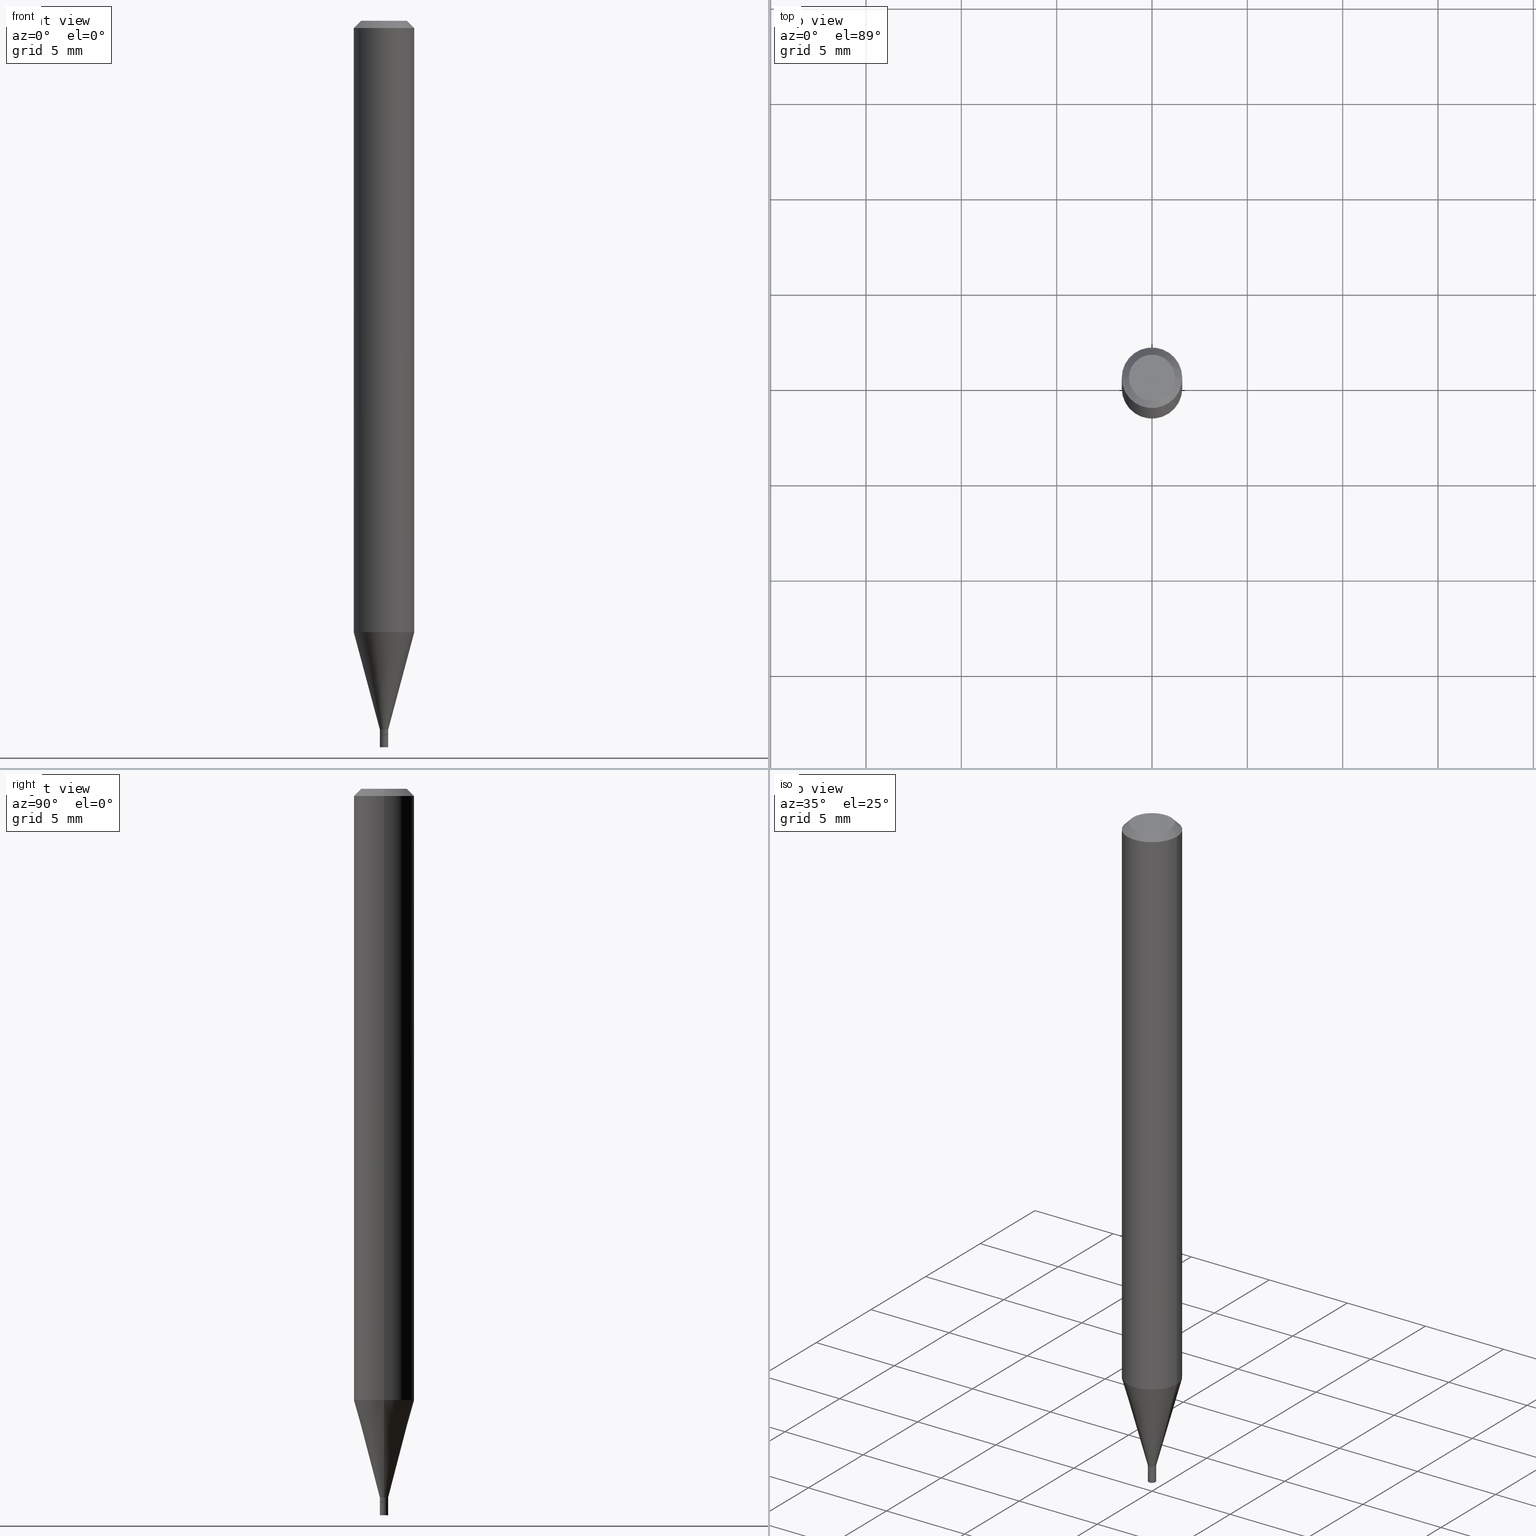
[diagram: canonical four-view strip — front | top / right | iso, engineering-drawing reading convention]
A machine part, canonical four-view strip (front | top / right | iso — engineering-drawing reading convention). The complete STEP part file that produces these views, byte-faithful:
ISO-10303-21;
HEADER;
FILE_DESCRIPTION (( 'STEP AP203' ),
    '1' );
FILE_NAME ('02250.STEP',
    '2024-03-18T19:57:06',
    ( '' ),
    ( '' ),
    'SwSTEP 2.0',
    'SolidWorks 2023',
    '' );
FILE_SCHEMA (( 'CONFIG_CONTROL_DESIGN' ));
ENDSEC;

DATA;
#1 = CC_DESIGN_DATE_AND_TIME_ASSIGNMENT ( #143, #280, ( #182 ) ) ;
#2 = CIRCLE ( 'NONE', #247, 0.008499999999999922548 ) ;
#3 = CC_DESIGN_APPROVAL ( #193, ( #182 ) ) ;
#4 = FACE_OUTER_BOUND ( 'NONE', #9, .T. ) ;
#5 = CARTESIAN_POINT ( 'NONE',  ( 3.604621020316892110E-29, -5.146443493454796836E-15, -1.474000000000000199 ) ) ;
#6 = DIRECTION ( 'NONE',  ( 1.000000000000000000, -6.982962677686266711E-15, 4.876176775795936353E-29 ) ) ;
#7 = CARTESIAN_POINT ( 'NONE',  ( 3.604621020316892110E-29, -5.146443493454796836E-15, -1.474000000000000199 ) ) ;
#8 = CARTESIAN_POINT ( 'NONE',  ( 3.603398285913799309E-29, -5.144697752785376121E-15, -1.473500000000000254 ) ) ;
#9 = EDGE_LOOP ( 'NONE', ( #220, #205, #58, #273 ) ) ;
#10 = ORIENTED_EDGE ( 'NONE', *, *, #334, .F. ) ;
#11 = ADVANCED_FACE ( 'NONE', ( #187 ), #390, .F. ) ;
#12 = DIRECTION ( 'NONE',  ( -2.445468806185136877E-29, 3.491481338843145188E-15, 1.000000000000000000 ) ) ;
#13 = ORIENTED_EDGE ( 'NONE', *, *, #389, .F. ) ;
#14 = CARTESIAN_POINT ( 'NONE',  ( 3.580166332255040005E-29, -5.111528680066365187E-15, -1.463999999999999968 ) ) ;
#15 = CC_DESIGN_PERSON_AND_ORGANIZATION_ASSIGNMENT ( #417, #378, ( #379 ) ) ;
#16 = ORIENTED_EDGE ( 'NONE', *, *, #431, .T. ) ;
#17 = FACE_OUTER_BOUND ( 'NONE', #331, .T. ) ;
#18 = LOCAL_TIME ( 15, 57, 6.000000000000000000, #23 ) ;
#19 = EDGE_LOOP ( 'NONE', ( #53, #228, #416, #164 ) ) ;
#20 = DIRECTION ( 'NONE',  ( 1.000000000000000000, -6.982962677686267499E-15, 5.108144071313017768E-29 ) ) ;
#21 = CARTESIAN_POINT ( 'NONE',  ( 0.06249999999999999306, -4.844323016908731836E-15, -1.262469256391280936 ) ) ;
#22 = CYLINDRICAL_SURFACE ( 'NONE', #131, 0.06250000000000000000 ) ;
#23 = COORDINATED_UNIVERSAL_TIME_OFFSET ( 5, 0, .BEHIND. ) ;
#24 = ORIENTED_EDGE ( 'NONE', *, *, #389, .T. ) ;
#25 = VECTOR ( 'NONE', #288, 39.37007874015748143 ) ;
#26 = APPROVAL_ROLE ( '' ) ;
#27 = EDGE_LOOP ( 'NONE', ( #255, #104, #192, #309 ) ) ;
#28 = LOCAL_TIME ( 15, 57, 6.000000000000000000, #178 ) ;
#29 = DIMENSIONAL_EXPONENTS ( 1.000000000000000000, 0.000000000000000000, 0.000000000000000000, 0.000000000000000000, 0.000000000000000000, 0.000000000000000000, 0.000000000000000000 ) ;
#30 = ADVANCED_FACE ( 'NONE', ( #110 ), #422, .T. ) ;
#31 = APPLICATION_PROTOCOL_DEFINITION ( 'international standard', 'config_control_design', 1994, #221 ) ;
#32 = PERSON_AND_ORGANIZATION ( #254, #248 ) ;
#33 = CARTESIAN_POINT ( 'NONE',  ( 0.008499999999999922548, -5.170883862826697886E-15, -1.463999999999999968 ) ) ;
#34 = AXIS2_PLACEMENT_3D ( 'NONE', #208, #90, #95 ) ;
#35 = EDGE_LOOP ( 'NONE', ( #303, #10 ) ) ;
#36 = CARTESIAN_POINT ( 'NONE',  ( -0.008499999999999922548, -5.051132547526757800E-15, -1.463999999999999968 ) ) ;
#37 = EDGE_CURVE ( 'NONE', #91, #124, #2, .T. ) ;
#38 = FACE_OUTER_BOUND ( 'NONE', #61, .T. ) ;
#39 = CARTESIAN_POINT ( 'NONE',  ( -0.008499999999999922548, 6.039613253960796547E-17, -4.181094826716631533E-31 ) ) ;
#40 = ADVANCED_FACE ( 'NONE', ( #38 ), #311, .T. ) ;
#41 = LINE ( 'NONE', #184, #362 ) ;
#42 = AXIS2_PLACEMENT_3D ( 'NONE', #251, #406, #356 ) ;
#43 = DIRECTION ( 'NONE',  ( 2.438088387897960049E-29, -3.491481338843145188E-15, -1.000000000000000000 ) ) ;
#44 = DIRECTION ( 'NONE',  ( -2.445468806185136877E-29, 3.491481338843145188E-15, 1.000000000000000000 ) ) ;
#45 = CARTESIAN_POINT ( 'NONE',  ( -0.008500000000000000611, 6.039613253960852014E-17, -4.181094826716670069E-31 ) ) ;
#46 = CARTESIAN_POINT ( 'NONE',  ( 0.008500000000000000611, -5.205798676215130324E-15, -1.474000000000000199 ) ) ;
#47 = ORIENTED_EDGE ( 'NONE', *, *, #325, .F. ) ;
#48 = VECTOR ( 'NONE', #227, 39.37007874015747433 ) ;
#49 = ORIENTED_EDGE ( 'NONE', *, *, #297, .T. ) ;
#50 = VERTEX_POINT ( 'NONE', #159 ) ;
#51 = EDGE_CURVE ( 'NONE', #359, #82, #460, .T. ) ;
#52 = CC_DESIGN_PERSON_AND_ORGANIZATION_ASSIGNMENT ( #305, #215, ( #408 ) ) ;
#53 = ORIENTED_EDGE ( 'NONE', *, *, #189, .F. ) ;
#54 = EDGE_LOOP ( 'NONE', ( #13, #130 ) ) ;
#55 = CARTESIAN_POINT ( 'NONE',  ( 0.000000000000000000, 0.000000000000000000, 0.000000000000000000 ) ) ;
#56 = EDGE_CURVE ( 'NONE', #179, #341, #426, .T. ) ;
#57 = DIRECTION ( 'NONE',  ( -2.445468806185136597E-29, 3.491481338843145583E-15, 1.000000000000000000 ) ) ;
#58 = ORIENTED_EDGE ( 'NONE', *, *, #339, .T. ) ;
#59 = DIRECTION ( 'NONE',  ( 1.000000000000000000, -6.982962677686262766E-15, 0.000000000000000000 ) ) ;
#60 = CARTESIAN_POINT ( 'NONE',  ( 0.008000000000000000167, -5.202307194876286528E-15, -1.474000000000000199 ) ) ;
#61 = EDGE_LOOP ( 'NONE', ( #197, #444, #304, #137 ) ) ;
#62 = CARTESIAN_POINT ( 'NONE',  ( 3.604621020316892110E-29, -5.146443493454796836E-15, -1.474000000000000199 ) ) ;
#63 = LOCAL_TIME ( 15, 57, 6.000000000000000000, #419 ) ;
#64 = CARTESIAN_POINT ( 'NONE',  ( 3.603398285913799309E-29, -5.144697752785376121E-15, -1.473500000000000254 ) ) ;
#65 = ORIENTED_EDGE ( 'NONE', *, *, #212, .T. ) ;
#66 = APPROVAL_DATE_TIME ( #384, #315 ) ;
#67 = DATE_TIME_ROLE ( 'creation_date' ) ;
#68 = ORIENTED_EDGE ( 'NONE', *, *, #85, .F. ) ;
#69 = APPROVAL_DATE_TIME ( #380, #193 ) ;
#70 = AXIS2_PLACEMENT_3D ( 'NONE', #62, #132, #264 ) ;
#71 = EDGE_CURVE ( 'NONE', #289, #124, #317, .T. ) ;
#72 = FACE_OUTER_BOUND ( 'NONE', #142, .T. ) ;
#73 = AXIS2_PLACEMENT_3D ( 'NONE', #357, #313, #109 ) ;
#74 = DIRECTION ( 'NONE',  ( -2.445468806185136877E-29, 3.491481338843145188E-15, 1.000000000000000000 ) ) ;
#75 = CC_DESIGN_PERSON_AND_ORGANIZATION_ASSIGNMENT ( #238, #336, ( #182 ) ) ;
#76 = AXIS2_PLACEMENT_3D ( 'NONE', #349, #392, #217 ) ;
#77 = CONICAL_SURFACE ( 'NONE', #435, 0.008000000000000000167, 0.7853981633974718157 ) ;
#78 = DIRECTION ( 'NONE',  ( -2.445468806185136597E-29, 3.491481338843145583E-15, 1.000000000000000000 ) ) ;
#79 = CARTESIAN_POINT ( 'NONE',  ( 3.580166332255040005E-29, -5.111528680066365187E-15, -1.463999999999999968 ) ) ;
#80 = CARTESIAN_POINT ( 'NONE',  ( -0.06250000000000000000, -1.786040824967931204E-15, -0.01499999999999999944 ) ) ;
#81 = CARTESIAN_POINT ( 'NONE',  ( -0.008500000000000000611, -5.131436618320148542E-15, -1.474000000000000199 ) ) ;
#82 = VERTEX_POINT ( 'NONE', #80 ) ;
#83 = ORIENTED_EDGE ( 'NONE', *, *, #177, .T. ) ;
#84 = LINE ( 'NONE', #396, #361 ) ;
#85 = EDGE_CURVE ( 'NONE', #167, #319, #310, .T. ) ;
#86 = AXIS2_PLACEMENT_3D ( 'NONE', #371, #415, #298 ) ;
#87 = CIRCLE ( 'NONE', #190, 0.04749999999999999362 ) ;
#88 = CARTESIAN_POINT ( 'NONE',  ( -0.008000000000000000167, -5.089600074593988770E-15, -1.474000000000000199 ) ) ;
#89 = AXIS2_PLACEMENT_3D ( 'NONE', #399, #222, #312 ) ;
#90 = DIRECTION ( 'NONE',  ( -2.445468806185136597E-29, 3.491481338843145583E-15, 1.000000000000000000 ) ) ;
#91 = VERTEX_POINT ( 'NONE', #33 ) ;
#92 = PLANE ( 'NONE',  #329 ) ;
#93 = CARTESIAN_POINT ( 'NONE',  ( 0.008499999999999922548, -5.204052935545708031E-15, -1.473500000000000254 ) ) ;
#94 = VERTEX_POINT ( 'NONE', #185 ) ;
#95 = DIRECTION ( 'NONE',  ( 1.000000000000000000, -6.982962677686266711E-15, 0.000000000000000000 ) ) ;
#96 = CARTESIAN_POINT ( 'NONE',  ( 3.087329185272623202E-29, -4.407887849553340167E-15, -1.262469256391280936 ) ) ;
#97 = ORIENTED_EDGE ( 'NONE', *, *, #297, .F. ) ;
#98 = CARTESIAN_POINT ( 'NONE',  ( 0.000000000000000000, 0.000000000000000000, 0.000000000000000000 ) ) ;
#99 = DIRECTION ( 'NONE',  ( 1.000000000000000000, -6.982962677686266711E-15, 4.876176775795935793E-29 ) ) ;
#100 = PERSON_AND_ORGANIZATION ( #254, #248 ) ;
#101 = EDGE_CURVE ( 'NONE', #145, #319, #425, .T. ) ;
#102 = ORIENTED_EDGE ( 'NONE', *, *, #56, .F. ) ;
#103 = PERSON_AND_ORGANIZATION_ROLE ( 'creator' ) ;
#104 = ORIENTED_EDGE ( 'NONE', *, *, #101, .T. ) ;
#105 = EDGE_CURVE ( 'NONE', #183, #91, #455, .T. ) ;
#106 = AXIS2_PLACEMENT_3D ( 'NONE', #5, #403, #194 ) ;
#107 = EDGE_CURVE ( 'NONE', #167, #134, #260, .T. ) ;
#108 = COORDINATED_UNIVERSAL_TIME_OFFSET ( 5, 0, .BEHIND. ) ;
#109 = DIRECTION ( 'NONE',  ( 1.000000000000000000, -6.982962677686211490E-15, 0.000000000000000000 ) ) ;
#110 = FACE_OUTER_BOUND ( 'NONE', #377, .T. ) ;
#111 = DIRECTION ( 'NONE',  ( 1.000000000000000000, -6.982962677686225690E-15, 0.000000000000000000 ) ) ;
#112 = DIRECTION ( 'NONE',  ( -2.445468806185136597E-29, 3.491481338843145583E-15, 1.000000000000000000 ) ) ;
#113 = VECTOR ( 'NONE', #286, 39.37007874015748143 ) ;
#114 = DIRECTION ( 'NONE',  ( 2.438088387897960049E-29, -3.491481338843145188E-15, -1.000000000000000000 ) ) ;
#115 = CONICAL_SURFACE ( 'NONE', #242, 0.008499999999999922548, 0.2617993877991501295 ) ;
#116 = LENGTH_MEASURE_WITH_UNIT ( LENGTH_MEASURE( 0.02539999999999999897 ), #427 );
#117 = PLANE ( 'NONE',  #405 ) ;
#118 = FACE_OUTER_BOUND ( 'NONE', #294, .T. ) ;
#119 = CARTESIAN_POINT ( 'NONE',  ( 3.604621020316892110E-29, -5.146443493454796836E-15, -1.474000000000000199 ) ) ;
#120 = DIRECTION ( 'NONE',  ( -2.445468806185136597E-29, 3.491481338843145583E-15, 1.000000000000000000 ) ) ;
#121 = CIRCLE ( 'NONE', #34, 0.06250000000000000000 ) ;
#122 = CC_DESIGN_APPROVAL ( #323, ( #374 ) ) ;
#123 = FACE_OUTER_BOUND ( 'NONE', #35, .T. ) ;
#124 = VERTEX_POINT ( 'NONE', #445 ) ;
#125 = FACE_OUTER_BOUND ( 'NONE', #148, .T. ) ;
#126 = DESIGN_CONTEXT ( 'detailed design', #221, 'design' ) ;
#127 = EDGE_CURVE ( 'NONE', #183, #289, #272, .T. ) ;
#128 = MANIFOLD_SOLID_BREP ( 'Body-Move/Copy2[1]', #157 ) ;
#129 = EDGE_CURVE ( 'NONE', #94, #135, #434, .T. ) ;
#130 = ORIENTED_EDGE ( 'NONE', *, *, #129, .F. ) ;
#131 = AXIS2_PLACEMENT_3D ( 'NONE', #370, #57, #99 ) ;
#132 = DIRECTION ( 'NONE',  ( -2.445468806185136597E-29, 3.491481338843145583E-15, 1.000000000000000000 ) ) ;
#133 = VERTEX_POINT ( 'NONE', #60 ) ;
#134 = VERTEX_POINT ( 'NONE', #332 ) ;
#135 = VERTEX_POINT ( 'NONE', #449 ) ;
#136 = CYLINDRICAL_SURFACE ( 'NONE', #301, 0.008500000000000000611 ) ;
#137 = ORIENTED_EDGE ( 'NONE', *, *, #429, .F. ) ;
#138 = CARTESIAN_POINT ( 'NONE',  ( 3.604621020316892110E-29, -5.146443493454796836E-15, -1.474000000000000199 ) ) ;
#139 = CALENDAR_DATE ( 2024, 18, 3 ) ;
#140 = ORIENTED_EDGE ( 'NONE', *, *, #71, .F. ) ;
#141 = CONICAL_SURFACE ( 'NONE', #151, 0.06250000000000000000, 0.7853981633974000953 ) ;
#142 = EDGE_LOOP ( 'NONE', ( #402, #166, #337, #324 ) ) ;
#143 = DATE_AND_TIME ( #308, #28 ) ;
#144 = CARTESIAN_POINT ( 'NONE',  ( 0.008499999999999922548, -5.170883862826697886E-15, -1.463999999999999968 ) ) ;
#145 = VERTEX_POINT ( 'NONE', #330 ) ;
#146 = DIRECTION ( 'NONE',  ( 1.000000000000000000, -6.982962677686274599E-15, 0.000000000000000000 ) ) ;
#147 = APPROVAL_ROLE ( '' ) ;
#148 = EDGE_LOOP ( 'NONE', ( #447, #411, #441, #152 ) ) ;
#149 = AXIS2_PLACEMENT_3D ( 'NONE', #8, #112, #219 ) ;
#150 = APPLICATION_PROTOCOL_DEFINITION ( 'international standard', 'config_control_design', 1994, #373 ) ;
#151 = AXIS2_PLACEMENT_3D ( 'NONE', #350, #388, #391 ) ;
#152 = ORIENTED_EDGE ( 'NONE', *, *, #237, .F. ) ;
#153 = LINE ( 'NONE', #144, #284 ) ;
#154 = DIRECTION ( 'NONE',  ( -1.000000000000000000, 6.982962677686265922E-15, -4.876176775795935793E-29 ) ) ;
#155 = DIRECTION ( 'NONE',  ( 1.000000000000000000, -6.982962677686211490E-15, 0.000000000000000000 ) ) ;
#156 = CARTESIAN_POINT ( 'NONE',  ( 3.580166332255040005E-29, -5.111528680066365187E-15, -1.463999999999999968 ) ) ;
#157 = CLOSED_SHELL ( 'NONE', ( #175, #446, #30, #11 ) ) ;
#158 = CIRCLE ( 'NONE', #338, 0.008500000000000000611 ) ;
#159 = CARTESIAN_POINT ( 'NONE',  ( -0.008000000000000000167, -5.086950847419879147E-15, -1.474000000000000199 ) ) ;
#160 = CARTESIAN_POINT ( 'NONE',  ( 3.316907271900976096E-16, 0.04749999999999999362, 5.577130024057243141E-16 ) ) ;
#161 = CC_DESIGN_PERSON_AND_ORGANIZATION_ASSIGNMENT ( #32, #214, ( #374 ) ) ;
#162 = CARTESIAN_POINT ( 'NONE',  ( -0.06250000000000000000, 3.840629472727444916E-16, -0.01499999999999999944 ) ) ;
#163 = DIRECTION ( 'NONE',  ( 1.000000000000000000, -6.982962677686274599E-15, 0.000000000000000000 ) ) ;
#164 = ORIENTED_EDGE ( 'NONE', *, *, #257, .F. ) ;
#165 = AXIS2_PLACEMENT_3D ( 'NONE', #98, #299, #302 ) ;
#166 = ORIENTED_EDGE ( 'NONE', *, *, #342, .T. ) ;
#167 = VERTEX_POINT ( 'NONE', #21 ) ;
#168 = CIRCLE ( 'NONE', #382, 0.008000000000000000167 ) ;
#169 = DIRECTION ( 'NONE',  ( -2.445468806185136877E-29, 3.491481338843145188E-15, 1.000000000000000000 ) ) ;
#170 = FACE_OUTER_BOUND ( 'NONE', #436, .T. ) ;
#171 = DIRECTION ( 'NONE',  ( -2.445468806185136597E-29, 3.491481338843145583E-15, 1.000000000000000000 ) ) ;
#172 = CARTESIAN_POINT ( 'NONE',  ( 0.000000000000000000, 0.000000000000000000, 0.000000000000000000 ) ) ;
#173 = SECURITY_CLASSIFICATION_LEVEL ( 'unclassified' ) ;
#174 =( CONVERSION_BASED_UNIT ( 'INCH', #116 ) LENGTH_UNIT ( ) NAMED_UNIT ( #29 ) );
#175 = ADVANCED_FACE ( 'NONE', ( #170 ), #136, .T. ) ;
#176 = APPROVAL_PERSON_ORGANIZATION ( #100, #323, #147 ) ;
#177 = EDGE_CURVE ( 'NONE', #145, #359, #241, .T. ) ;
#178 = COORDINATED_UNIVERSAL_TIME_OFFSET ( 5, 0, .BEHIND. ) ;
#179 = VERTEX_POINT ( 'NONE', #46 ) ;
#180 = APPROVAL_DATE_TIME ( #277, #323 ) ;
#181 = CALENDAR_DATE ( 2024, 18, 3 ) ;
#182 = SECURITY_CLASSIFICATION ( '', '', #173 ) ;
#183 = VERTEX_POINT ( 'NONE', #93 ) ;
#184 = CARTESIAN_POINT ( 'NONE',  ( -0.06250000000000000000, 4.440892098500626162E-16, -3.074334431409316114E-30 ) ) ;
#185 = CARTESIAN_POINT ( 'NONE',  ( -0.008500000000000000611, -5.131436618320148542E-15, -1.500000000000000222 ) ) ;
#186 = ADVANCED_FACE ( 'NONE', ( #123 ), #400, .F. ) ;
#187 = FACE_OUTER_BOUND ( 'NONE', #367, .T. ) ;
#188 = AXIS2_PLACEMENT_3D ( 'NONE', #64, #207, #266 ) ;
#189 = EDGE_CURVE ( 'NONE', #50, #289, #199, .T. ) ;
#190 = AXIS2_PLACEMENT_3D ( 'NONE', #206, #450, #20 ) ;
#191 = EDGE_CURVE ( 'NONE', #135, #179, #84, .T. ) ;
#192 = ORIENTED_EDGE ( 'NONE', *, *, #270, .T. ) ;
#193 = APPROVAL ( #239, 'UNSPECIFIED' ) ;
#194 = DIRECTION ( 'NONE',  ( 1.000000000000000000, -6.982962677686265922E-15, 4.876176775795935793E-29 ) ) ;
#195 = CONICAL_SURFACE ( 'NONE', #322, 0.008499999999999922548, 0.2617993877991501295 ) ;
#196 = LINE ( 'NONE', #290, #281 ) ;
#197 = ORIENTED_EDGE ( 'NONE', *, *, #431, .F. ) ;
#198 = ORIENTED_EDGE ( 'NONE', *, *, #191, .F. ) ;
#199 = LINE ( 'NONE', #88, #351 ) ;
#200 = ORIENTED_EDGE ( 'NONE', *, *, #37, .F. ) ;
#201 = DIRECTION ( 'NONE',  ( 1.000000000000000000, -6.982962677686265922E-15, 4.876176775795935793E-29 ) ) ;
#202 = CARTESIAN_POINT ( 'NONE',  ( 3.668203209277705088E-31, -5.237222008264718399E-17, -0.01499999999999999944 ) ) ;
#203 = CIRCLE ( 'NONE', #462, 0.008499999999999922548 ) ;
#204 = AXIS2_PLACEMENT_3D ( 'NONE', #96, #171, #59 ) ;
#205 = ORIENTED_EDGE ( 'NONE', *, *, #265, .T. ) ;
#206 = CARTESIAN_POINT ( 'NONE',  ( -3.538878827018360888E-44, 5.052581064911080951E-30, 1.447116732001547520E-15 ) ) ;
#207 = DIRECTION ( 'NONE',  ( -2.445468806185136597E-29, 3.491481338843145583E-15, 1.000000000000000000 ) ) ;
#208 = CARTESIAN_POINT ( 'NONE',  ( 3.668203209277705088E-31, -5.237222008264718399E-17, -0.01499999999999999944 ) ) ;
#209 = APPROVAL_STATUS ( 'not_yet_approved' ) ;
#210 = COORDINATED_UNIVERSAL_TIME_OFFSET ( 5, 0, .BEHIND. ) ;
#211 = ORIENTED_EDGE ( 'NONE', *, *, #265, .F. ) ;
#212 = EDGE_CURVE ( 'NONE', #94, #341, #233, .T. ) ;
#213 = CIRCLE ( 'NONE', #387, 0.008500000000000000611 ) ;
#214 = PERSON_AND_ORGANIZATION_ROLE ( 'design_supplier' ) ;
#215 = PERSON_AND_ORGANIZATION_ROLE ( 'design_owner' ) ;
#216 = CYLINDRICAL_SURFACE ( 'NONE', #353, 0.008499999999999922548 ) ;
#217 = DIRECTION ( 'NONE',  ( 1.000000000000000000, -6.982962677686267499E-15, 4.876176775795935793E-29 ) ) ;
#218 = CONICAL_SURFACE ( 'NONE', #453, 0.06250000000000000000, 0.7853981633974000953 ) ;
#219 = DIRECTION ( 'NONE',  ( 1.000000000000000000, -6.982962677686225690E-15, 0.000000000000000000 ) ) ;
#220 = ORIENTED_EDGE ( 'NONE', *, *, #342, .F. ) ;
#221 = APPLICATION_CONTEXT ( 'configuration controlled 3d designs of mechanical parts and assemblies' ) ;
#222 = DIRECTION ( 'NONE',  ( -2.445468806185136597E-29, 3.491481338843145583E-15, 1.000000000000000000 ) ) ;
#223 = FACE_OUTER_BOUND ( 'NONE', #358, .T. ) ;
#224 = CARTESIAN_POINT ( 'NONE',  ( 3.580166332255040005E-29, -5.111528680066365187E-15, -1.463999999999999968 ) ) ;
#225 = VECTOR ( 'NONE', #360, 39.37007874015748143 ) ;
#226 = ORIENTED_EDGE ( 'NONE', *, *, #101, .F. ) ;
#227 = DIRECTION ( 'NONE',  ( -0.2588190451025214611, 5.211531920934551042E-15, 0.9659258262890682012 ) ) ;
#228 = ORIENTED_EDGE ( 'NONE', *, *, #334, .T. ) ;
#229 = VECTOR ( 'NONE', #249, 39.37007874015748143 ) ;
#230 = DIRECTION ( 'NONE',  ( 0.7071067811865642261, -2.468850131082431399E-15, 0.7071067811865309194 ) ) ;
#231 = ORIENTED_EDGE ( 'NONE', *, *, #105, .T. ) ;
#232 = DIRECTION ( 'NONE',  ( -2.438088387897960049E-29, 3.491481338843145188E-15, 1.000000000000000000 ) ) ;
#233 = LINE ( 'NONE', #45, #225 ) ;
#234 = DIRECTION ( 'NONE',  ( -1.000000000000000000, 6.982962677686266711E-15, 0.000000000000000000 ) ) ;
#235 = DIRECTION ( 'NONE',  ( 2.445468806185136597E-29, -3.491481338843145583E-15, -1.000000000000000000 ) ) ;
#236 = APPROVAL_PERSON_ORGANIZATION ( #412, #193, #26 ) ;
#237 = EDGE_CURVE ( 'NONE', #133, #183, #196, .T. ) ;
#238 = PERSON_AND_ORGANIZATION ( #254, #248 ) ;
#239 = APPROVAL_STATUS ( 'not_yet_approved' ) ;
#240 = ADVANCED_FACE ( 'NONE', ( #263 ), #368, .T. ) ;
#241 = CIRCLE ( 'NONE', #42, 0.04749999999999999362 ) ;
#242 = AXIS2_PLACEMENT_3D ( 'NONE', #79, #464, #111 ) ;
#243 = DIRECTION ( 'NONE',  ( -2.445468806185136597E-29, 3.491481338843145583E-15, 1.000000000000000000 ) ) ;
#244 = APPROVAL_ROLE ( '' ) ;
#245 = CARTESIAN_POINT ( 'NONE',  ( -0.04749999999999999362, 3.578768372314235651E-16, 1.447116732001545153E-15 ) ) ;
#246 = DIRECTION ( 'NONE',  ( -2.445468806185136597E-29, 3.491481338843145583E-15, 1.000000000000000000 ) ) ;
#247 = AXIS2_PLACEMENT_3D ( 'NONE', #224, #246, #348 ) ;
#248 = ORGANIZATION ( 'UNSPECIFIED', 'UNSPECIFIED', '' ) ;
#249 = DIRECTION ( 'NONE',  ( 0.7071067811865134889, -7.319954787623140872E-15, -0.7071067811865816566 ) ) ;
#250 = DIRECTION ( 'NONE',  ( -2.445468806185136597E-29, 3.491481338843145583E-15, 1.000000000000000000 ) ) ;
#251 = CARTESIAN_POINT ( 'NONE',  ( -3.538878827018360888E-44, 5.052581064911080951E-30, 1.447116732001547520E-15 ) ) ;
#252 = CC_DESIGN_APPROVAL ( #315, ( #379 ) ) ;
#253 = CARTESIAN_POINT ( 'NONE',  ( 3.668203209277704895E-29, -5.237222008264718177E-15, -1.500000000000000222 ) ) ;
#254 = PERSON ( 'UNSPECIFIED', 'UNSPECIFIED', 'UNSPECIFIED', ('UNSPECIFIED'), ('UNSPECIFIED'), ('UNSPECIFIED') ) ;
#255 = ORIENTED_EDGE ( 'NONE', *, *, #177, .F. ) ;
#256 = ORIENTED_EDGE ( 'NONE', *, *, #71, .T. ) ;
#257 = EDGE_CURVE ( 'NONE', #289, #183, #385, .T. ) ;
#258 = ORIENTED_EDGE ( 'NONE', *, *, #257, .T. ) ;
#259 = ADVANCED_BREP_SHAPE_REPRESENTATION ( '02250', ( #128, #432, #165 ), #347 ) ;
#260 = CIRCLE ( 'NONE', #413, 0.06250000000000000000 ) ;
#261 = CC_DESIGN_SECURITY_CLASSIFICATION ( #182, ( #374 ) ) ;
#262 = CC_DESIGN_DATE_AND_TIME_ASSIGNMENT ( #452, #67, ( #379 ) ) ;
#263 = FACE_OUTER_BOUND ( 'NONE', #321, .T. ) ;
#264 = DIRECTION ( 'NONE',  ( 1.000000000000000000, -6.982962677686211490E-15, 0.000000000000000000 ) ) ;
#265 = EDGE_CURVE ( 'NONE', #124, #91, #203, .T. ) ;
#266 = DIRECTION ( 'NONE',  ( 1.000000000000000000, -6.982962677686225690E-15, 0.000000000000000000 ) ) ;
#267 = ORIENTED_EDGE ( 'NONE', *, *, #191, .T. ) ;
#268 = FACE_OUTER_BOUND ( 'NONE', #54, .T. ) ;
#270 = EDGE_CURVE ( 'NONE', #319, #82, #121, .T. ) ;
#269 = CARTESIAN_POINT ( 'NONE',  ( 0.008499999999999922548, -5.935518276033272371E-17, 4.144750259426508219E-31 ) ) ;
#271 = ADVANCED_FACE ( 'NONE', ( #17 ), #218, .T. ) ;
#272 = CIRCLE ( 'NONE', #188, 0.008499999999999922548 ) ;
#273 = ORIENTED_EDGE ( 'NONE', *, *, #456, .F. ) ;
#274 = CALENDAR_DATE ( 2024, 18, 3 ) ;
#275 = CARTESIAN_POINT ( 'NONE',  ( 3.087329185272623202E-29, -4.407887849553340167E-15, -1.262469256391280936 ) ) ;
#276 = PERSON_AND_ORGANIZATION ( #254, #248 ) ;
#277 = DATE_AND_TIME ( #181, #18 ) ;
#278 = ADVANCED_FACE ( 'NONE', ( #372 ), #22, .T. ) ;
#279 = CONICAL_SURFACE ( 'NONE', #73, 0.008000000000000000167, 0.7853981633974718157 ) ;
#280 = DATE_TIME_ROLE ( 'classification_date' ) ;
#281 = VECTOR ( 'NONE', #230, 39.37007874015748143 ) ;
#282 = CARTESIAN_POINT ( 'NONE',  ( 0.000000000000000000, 0.000000000000000000, 0.000000000000000000 ) ) ;
#283 = AXIS2_PLACEMENT_3D ( 'NONE', #282, #428, #352 ) ;
#284 = VECTOR ( 'NONE', #401, 39.37007874015747433 ) ;
#285 = EDGE_CURVE ( 'NONE', #133, #50, #307, .T. ) ;
#286 = DIRECTION ( 'NONE',  ( -0.7071067811865134889, 2.468850131081900101E-15, -0.7071067811865816566 ) ) ;
#287 = DIRECTION ( 'NONE',  ( -2.445468806185136597E-29, 3.491481338843145583E-15, 1.000000000000000000 ) ) ;
#288 = DIRECTION ( 'NONE',  ( -2.445468806185136877E-29, 3.491481338843145188E-15, 1.000000000000000000 ) ) ;
#289 = VERTEX_POINT ( 'NONE', #407 ) ;
#290 = CARTESIAN_POINT ( 'NONE',  ( 0.008000000000000000167, -5.202307194876286528E-15, -1.474000000000000199 ) ) ;
#291 = EDGE_LOOP ( 'NONE', ( #409, #16, #345, #68 ) ) ;
#292 = DIRECTION ( 'NONE',  ( -2.445468806185136597E-29, 3.491481338843145583E-15, 1.000000000000000000 ) ) ;
#293 = APPROVAL_PERSON_ORGANIZATION ( #375, #315, #244 ) ;
#294 = EDGE_LOOP ( 'NONE', ( #437, #256, #200, #459 ) ) ;
#295 = DIRECTION ( 'NONE',  ( 1.000000000000000000, -6.982962677686262766E-15, 0.000000000000000000 ) ) ;
#296 = ORIENTED_EDGE ( 'NONE', *, *, #429, .T. ) ;
#297 = EDGE_CURVE ( 'NONE', #359, #145, #87, .T. ) ;
#298 = DIRECTION ( 'NONE',  ( 1.000000000000000000, -6.982962677686274599E-15, 0.000000000000000000 ) ) ;
#299 = DIRECTION ( 'NONE',  ( 0.000000000000000000, 0.000000000000000000, 1.000000000000000000 ) ) ;
#300 = CARTESIAN_POINT ( 'NONE',  ( 0.000000000000000000, 0.000000000000000000, 0.000000000000000000 ) ) ;
#301 = AXIS2_PLACEMENT_3D ( 'NONE', #172, #365, #320 ) ;
#302 = DIRECTION ( 'NONE',  ( 1.000000000000000000, 0.000000000000000000, 0.000000000000000000 ) ) ;
#303 = ORIENTED_EDGE ( 'NONE', *, *, #285, .F. ) ;
#304 = ORIENTED_EDGE ( 'NONE', *, *, #85, .T. ) ;
#305 = PERSON_AND_ORGANIZATION ( #254, #248 ) ;
#306 = AXIS2_PLACEMENT_3D ( 'NONE', #465, #43, #154 ) ;
#307 = CIRCLE ( 'NONE', #70, 0.008000000000000000167 ) ;
#308 = CALENDAR_DATE ( 2024, 18, 3 ) ;
#309 = ORIENTED_EDGE ( 'NONE', *, *, #51, .F. ) ;
#310 = LINE ( 'NONE', #354, #327 ) ;
#311 = CYLINDRICAL_SURFACE ( 'NONE', #283, 0.06250000000000000000 ) ;
#312 = DIRECTION ( 'NONE',  ( 1.000000000000000000, -6.982962677686266711E-15, 0.000000000000000000 ) ) ;
#313 = DIRECTION ( 'NONE',  ( -2.445468806185136597E-29, 3.491481338843145583E-15, 1.000000000000000000 ) ) ;
#314 = LOCAL_TIME ( 15, 57, 6.000000000000000000, #108 ) ;
#315 = APPROVAL ( #343, 'UNSPECIFIED' ) ;
#316 = DIRECTION ( 'NONE',  ( -2.445468806185136597E-29, 3.491481338843145583E-15, 1.000000000000000000 ) ) ;
#317 = LINE ( 'NONE', #39, #25 ) ;
#318 = DIRECTION ( 'NONE',  ( 1.000000000000000000, -6.982962677686266711E-15, 4.876176775795936353E-29 ) ) ;
#319 = VERTEX_POINT ( 'NONE', #448 ) ;
#320 = DIRECTION ( 'NONE',  ( 1.000000000000000000, -6.982962677686267499E-15, 4.876176775795935793E-29 ) ) ;
#321 = EDGE_LOOP ( 'NONE', ( #140, #258, #231, #211 ) ) ;
#322 = AXIS2_PLACEMENT_3D ( 'NONE', #156, #250, #393 ) ;
#323 = APPROVAL ( #209, 'UNSPECIFIED' ) ;
#324 = ORIENTED_EDGE ( 'NONE', *, *, #339, .F. ) ;
#325 = EDGE_CURVE ( 'NONE', #341, #179, #158, .T. ) ;
#326 = DIRECTION ( 'NONE',  ( -2.445468806185136597E-29, 3.491481338843145583E-15, 1.000000000000000000 ) ) ;
#327 = VECTOR ( 'NONE', #44, 39.37007874015748143 ) ;
#328 = PRODUCT_DEFINITION_SHAPE ( 'NONE', 'NONE',  #379 ) ;
#329 = AXIS2_PLACEMENT_3D ( 'NONE', #376, #232, #201 ) ;
#330 = CARTESIAN_POINT ( 'NONE',  ( 0.04749999999999999362, -4.035134999187553478E-16, 1.447116732001550281E-15 ) ) ;
#331 = EDGE_LOOP ( 'NONE', ( #226, #97, #366, #296 ) ) ;
#332 = CARTESIAN_POINT ( 'NONE',  ( -0.06249999999999999306, -3.963798639703278339E-15, -1.262469256391280936 ) ) ;
#333 = MECHANICAL_CONTEXT ( 'NONE', #373, 'mechanical' ) ;
#334 = EDGE_CURVE ( 'NONE', #50, #133, #168, .T. ) ;
#335 = DIRECTION ( 'NONE',  ( 1.000000000000000000, -6.982962677686211490E-15, 0.000000000000000000 ) ) ;
#336 = PERSON_AND_ORGANIZATION_ROLE ( 'classification_officer' ) ;
#337 = ORIENTED_EDGE ( 'NONE', *, *, #107, .F. ) ;
#338 = AXIS2_PLACEMENT_3D ( 'NONE', #138, #243, #146 ) ;
#339 = EDGE_CURVE ( 'NONE', #91, #167, #153, .T. ) ;
#340 = SHAPE_DEFINITION_REPRESENTATION ( #328, #259 ) ;
#341 = VERTEX_POINT ( 'NONE', #81 ) ;
#342 = EDGE_CURVE ( 'NONE', #124, #134, #439, .T. ) ;
#343 = APPROVAL_STATUS ( 'not_yet_approved' ) ;
#344 = CARTESIAN_POINT ( 'NONE',  ( 3.604621020316892110E-29, -5.146443493454796836E-15, -1.474000000000000199 ) ) ;
#345 = ORIENTED_EDGE ( 'NONE', *, *, #270, .F. ) ;
#346 = CC_DESIGN_PERSON_AND_ORGANIZATION_ASSIGNMENT ( #276, #103, ( #374 ) ) ;
#347 =( GEOMETRIC_REPRESENTATION_CONTEXT ( 3 ) GLOBAL_UNCERTAINTY_ASSIGNED_CONTEXT ( ( #410 ) ) GLOBAL_UNIT_ASSIGNED_CONTEXT ( ( #174, #383, #386 ) ) REPRESENTATION_CONTEXT ( 'NONE', 'WORKASPACE' ) );
#348 = DIRECTION ( 'NONE',  ( 1.000000000000000000, -6.982962677686225690E-15, 0.000000000000000000 ) ) ;
#349 = CARTESIAN_POINT ( 'NONE',  ( 0.000000000000000000, 0.000000000000000000, 0.000000000000000000 ) ) ;
#350 = CARTESIAN_POINT ( 'NONE',  ( 3.668203209277705088E-31, -5.237222008264718399E-17, -0.01499999999999999944 ) ) ;
#351 = VECTOR ( 'NONE', #438, 39.37007874015748143 ) ;
#352 = DIRECTION ( 'NONE',  ( 1.000000000000000000, -6.982962677686266711E-15, 4.876176775795935793E-29 ) ) ;
#353 = AXIS2_PLACEMENT_3D ( 'NONE', #300, #458, #6 ) ;
#354 = CARTESIAN_POINT ( 'NONE',  ( 0.06250000000000000000, -4.364351673553916694E-16, 3.047610484872459871E-30 ) ) ;
#355 = ADVANCED_FACE ( 'NONE', ( #125 ), #279, .T. ) ;
#356 = DIRECTION ( 'NONE',  ( 1.000000000000000000, -6.982962677686267499E-15, 5.108144071313017768E-29 ) ) ;
#357 = CARTESIAN_POINT ( 'NONE',  ( 3.604621020316892110E-29, -5.146443493454796836E-15, -1.474000000000000199 ) ) ;
#358 = EDGE_LOOP ( 'NONE', ( #49, #83 ) ) ;
#359 = VERTEX_POINT ( 'NONE', #245 ) ;
#360 = DIRECTION ( 'NONE',  ( -2.445468806185136877E-29, 3.491481338843145188E-15, 1.000000000000000000 ) ) ;
#361 = VECTOR ( 'NONE', #12, 39.37007874015748143 ) ;
#362 = VECTOR ( 'NONE', #74, 39.37007874015748143 ) ;
#363 = ORIENTED_EDGE ( 'NONE', *, *, #325, .T. ) ;
#364 = ADVANCED_FACE ( 'NONE', ( #223 ), #117, .F. ) ;
#365 = DIRECTION ( 'NONE',  ( -2.445468806185136597E-29, 3.491481338843145583E-15, 1.000000000000000000 ) ) ;
#366 = ORIENTED_EDGE ( 'NONE', *, *, #51, .T. ) ;
#367 = EDGE_LOOP ( 'NONE', ( #404, #363 ) ) ;
#369 = ADVANCED_FACE ( 'NONE', ( #72 ), #195, .T. ) ;
#368 = CYLINDRICAL_SURFACE ( 'NONE', #395, 0.008499999999999922548 ) ;
#370 = CARTESIAN_POINT ( 'NONE',  ( 0.000000000000000000, 0.000000000000000000, 0.000000000000000000 ) ) ;
#371 = CARTESIAN_POINT ( 'NONE',  ( 3.668203209277704895E-29, -5.237222008264718177E-15, -1.500000000000000222 ) ) ;
#372 = FACE_OUTER_BOUND ( 'NONE', #291, .T. ) ;
#373 = APPLICATION_CONTEXT ( 'configuration controlled 3d designs of mechanical parts and assemblies' ) ;
#374 = PRODUCT_DEFINITION_FORMATION_WITH_SPECIFIED_SOURCE ( 'ANY', '', #408, .NOT_KNOWN. ) ;
#375 = PERSON_AND_ORGANIZATION ( #254, #248 ) ;
#376 = CARTESIAN_POINT ( 'NONE',  ( 3.576687321579069994E-29, -5.368277968210015545E-15, -1.500000000000000222 ) ) ;
#377 = EDGE_LOOP ( 'NONE', ( #451, #461, #267, #47 ) ) ;
#378 = PERSON_AND_ORGANIZATION_ROLE ( 'creator' ) ;
#379 = PRODUCT_DEFINITION ( 'UNKNOWN', '', #374, #126 ) ;
#380 = DATE_AND_TIME ( #457, #314 ) ;
#381 = VECTOR ( 'NONE', #169, 39.37007874015748143 ) ;
#382 = AXIS2_PLACEMENT_3D ( 'NONE', #344, #463, #335 ) ;
#383 =( NAMED_UNIT ( * ) PLANE_ANGLE_UNIT ( ) SI_UNIT ( $, .RADIAN. ) );
#384 = DATE_AND_TIME ( #274, #63 ) ;
#385 = CIRCLE ( 'NONE', #149, 0.008499999999999922548 ) ;
#386 =( NAMED_UNIT ( * ) SI_UNIT ( $, .STERADIAN. ) SOLID_ANGLE_UNIT ( ) );
#387 = AXIS2_PLACEMENT_3D ( 'NONE', #253, #287, #163 ) ;
#388 = DIRECTION ( 'NONE',  ( 2.445468806185136597E-29, -3.491481338843145583E-15, -1.000000000000000000 ) ) ;
#389 = EDGE_CURVE ( 'NONE', #135, #94, #213, .T. ) ;
#390 = PLANE ( 'NONE',  #306 ) ;
#391 = DIRECTION ( 'NONE',  ( -1.000000000000000000, 6.982962677686266711E-15, 0.000000000000000000 ) ) ;
#392 = DIRECTION ( 'NONE',  ( -2.445468806185136597E-29, 3.491481338843145583E-15, 1.000000000000000000 ) ) ;
#393 = DIRECTION ( 'NONE',  ( 1.000000000000000000, -6.982962677686225690E-15, 0.000000000000000000 ) ) ;
#394 = DIRECTION ( 'NONE',  ( 1.000000000000000000, -6.982962677686274599E-15, 0.000000000000000000 ) ) ;
#395 = AXIS2_PLACEMENT_3D ( 'NONE', #55, #78, #318 ) ;
#397 = ADVANCED_FACE ( 'NONE', ( #433 ), #77, .T. ) ;
#396 = CARTESIAN_POINT ( 'NONE',  ( 0.008500000000000000611, -5.935518276033327838E-17, 4.144750259426545879E-31 ) ) ;
#398 = CIRCLE ( 'NONE', #204, 0.06250000000000000000 ) ;
#399 = CARTESIAN_POINT ( 'NONE',  ( 3.668203209277705088E-31, -5.237222008264718399E-17, -0.01499999999999999944 ) ) ;
#400 = PLANE ( 'NONE',  #106 ) ;
#401 = DIRECTION ( 'NONE',  ( 0.2588190451025214611, 1.565188264969621573E-15, 0.9659258262890682012 ) ) ;
#402 = ORIENTED_EDGE ( 'NONE', *, *, #37, .T. ) ;
#403 = DIRECTION ( 'NONE',  ( -2.438088387897960049E-29, 3.491481338843145188E-15, 1.000000000000000000 ) ) ;
#404 = ORIENTED_EDGE ( 'NONE', *, *, #56, .T. ) ;
#405 = AXIS2_PLACEMENT_3D ( 'NONE', #160, #114, #466 ) ;
#406 = DIRECTION ( 'NONE',  ( -2.445468806185136597E-29, 3.491481338843145583E-15, 1.000000000000000000 ) ) ;
#407 = CARTESIAN_POINT ( 'NONE',  ( -0.008499999999999922548, -5.084301620245767946E-15, -1.473500000000000254 ) ) ;
#408 = PRODUCT ( '02250', '02250', '', ( #333 ) ) ;
#409 = ORIENTED_EDGE ( 'NONE', *, *, #107, .T. ) ;
#410 = UNCERTAINTY_MEASURE_WITH_UNIT (LENGTH_MEASURE( 1.000000000000000082E-05 ), #174, 'distance_accuracy_value', 'NONE');
#411 = ORIENTED_EDGE ( 'NONE', *, *, #189, .T. ) ;
#412 = PERSON_AND_ORGANIZATION ( #254, #248 ) ;
#413 = AXIS2_PLACEMENT_3D ( 'NONE', #275, #326, #295 ) ;
#414 = LOCAL_TIME ( 15, 57, 6.000000000000000000, #210 ) ;
#415 = DIRECTION ( 'NONE',  ( -2.445468806185136597E-29, 3.491481338843145583E-15, 1.000000000000000000 ) ) ;
#416 = ORIENTED_EDGE ( 'NONE', *, *, #237, .T. ) ;
#417 = PERSON_AND_ORGANIZATION ( #254, #248 ) ;
#418 = ADVANCED_FACE ( 'NONE', ( #430 ), #141, .T. ) ;
#419 = COORDINATED_UNIVERSAL_TIME_OFFSET ( 5, 0, .BEHIND. ) ;
#420 = ADVANCED_FACE ( 'NONE', ( #118 ), #216, .T. ) ;
#421 = AXIS2_PLACEMENT_3D ( 'NONE', #119, #316, #394 ) ;
#422 = CYLINDRICAL_SURFACE ( 'NONE', #76, 0.008500000000000000611 ) ;
#423 = PRODUCT_RELATED_PRODUCT_CATEGORY ( 'detail', '', ( #408 ) ) ;
#424 = CARTESIAN_POINT ( 'NONE',  ( 0.06250000000000000000, -4.811533449433679005E-16, -0.01499999999999999944 ) ) ;
#425 = LINE ( 'NONE', #424, #229 ) ;
#426 = CIRCLE ( 'NONE', #421, 0.008500000000000000611 ) ;
#427 =( LENGTH_UNIT ( ) NAMED_UNIT ( * ) SI_UNIT ( $, .METRE. ) );
#428 = DIRECTION ( 'NONE',  ( -2.445468806185136597E-29, 3.491481338843145583E-15, 1.000000000000000000 ) ) ;
#429 = EDGE_CURVE ( 'NONE', #82, #319, #454, .T. ) ;
#430 = FACE_OUTER_BOUND ( 'NONE', #27, .T. ) ;
#431 = EDGE_CURVE ( 'NONE', #134, #82, #41, .T. ) ;
#432 = MANIFOLD_SOLID_BREP ( 'Body-Move/Copy2[2]', #443 ) ;
#433 = FACE_OUTER_BOUND ( 'NONE', #19, .T. ) ;
#434 = CIRCLE ( 'NONE', #86, 0.008500000000000000611 ) ;
#435 = AXIS2_PLACEMENT_3D ( 'NONE', #7, #120, #155 ) ;
#436 = EDGE_LOOP ( 'NONE', ( #24, #65, #102, #198 ) ) ;
#437 = ORIENTED_EDGE ( 'NONE', *, *, #127, .T. ) ;
#438 = DIRECTION ( 'NONE',  ( -0.7071067811865642261, 7.493145998870414114E-15, 0.7071067811865309194 ) ) ;
#439 = LINE ( 'NONE', #36, #48 ) ;
#440 = DIRECTION ( 'NONE',  ( 1.000000000000000000, -6.982962677686225690E-15, 0.000000000000000000 ) ) ;
#441 = ORIENTED_EDGE ( 'NONE', *, *, #127, .F. ) ;
#442 = ADVANCED_FACE ( 'NONE', ( #4 ), #115, .T. ) ;
#443 = CLOSED_SHELL ( 'NONE', ( #420, #355, #418, #278, #369, #442, #40, #271, #364, #186, #397, #240 ) ) ;
#444 = ORIENTED_EDGE ( 'NONE', *, *, #456, .T. ) ;
#445 = CARTESIAN_POINT ( 'NONE',  ( -0.008499999999999922548, -4.507465593615018070E-15, -1.463999999999999968 ) ) ;
#446 = ADVANCED_FACE ( 'NONE', ( #268 ), #92, .F. ) ;
#447 = ORIENTED_EDGE ( 'NONE', *, *, #285, .T. ) ;
#448 = CARTESIAN_POINT ( 'NONE',  ( 0.06250000000000000000, -4.888073874380388472E-16, -0.01499999999999999944 ) ) ;
#449 = CARTESIAN_POINT ( 'NONE',  ( 0.008500000000000000611, -5.296577191025051665E-15, -1.500000000000000222 ) ) ;
#450 = DIRECTION ( 'NONE',  ( -2.445468806185136597E-29, 3.491481338843145583E-15, 1.000000000000000000 ) ) ;
#451 = ORIENTED_EDGE ( 'NONE', *, *, #212, .F. ) ;
#452 = DATE_AND_TIME ( #139, #414 ) ;
#453 = AXIS2_PLACEMENT_3D ( 'NONE', #202, #235, #234 ) ;
#454 = CIRCLE ( 'NONE', #89, 0.06250000000000000000 ) ;
#455 = LINE ( 'NONE', #269, #381 ) ;
#456 = EDGE_CURVE ( 'NONE', #134, #167, #398, .T. ) ;
#457 = CALENDAR_DATE ( 2024, 18, 3 ) ;
#458 = DIRECTION ( 'NONE',  ( -2.445468806185136597E-29, 3.491481338843145583E-15, 1.000000000000000000 ) ) ;
#459 = ORIENTED_EDGE ( 'NONE', *, *, #105, .F. ) ;
#460 = LINE ( 'NONE', #162, #113 ) ;
#461 = ORIENTED_EDGE ( 'NONE', *, *, #129, .T. ) ;
#462 = AXIS2_PLACEMENT_3D ( 'NONE', #14, #292, #440 ) ;
#463 = DIRECTION ( 'NONE',  ( -2.445468806185136597E-29, 3.491481338843145583E-15, 1.000000000000000000 ) ) ;
#464 = DIRECTION ( 'NONE',  ( -2.445468806185136597E-29, 3.491481338843145583E-15, 1.000000000000000000 ) ) ;
#465 = CARTESIAN_POINT ( 'NONE',  ( 5.935518276036931946E-17, 0.008499999999994853686, -1.474000000000000199 ) ) ;
#466 = DIRECTION ( 'NONE',  ( -1.000000000000000000, 6.982962677686265922E-15, -4.876176775795935793E-29 ) ) ;
ENDSEC;
END-ISO-10303-21;
